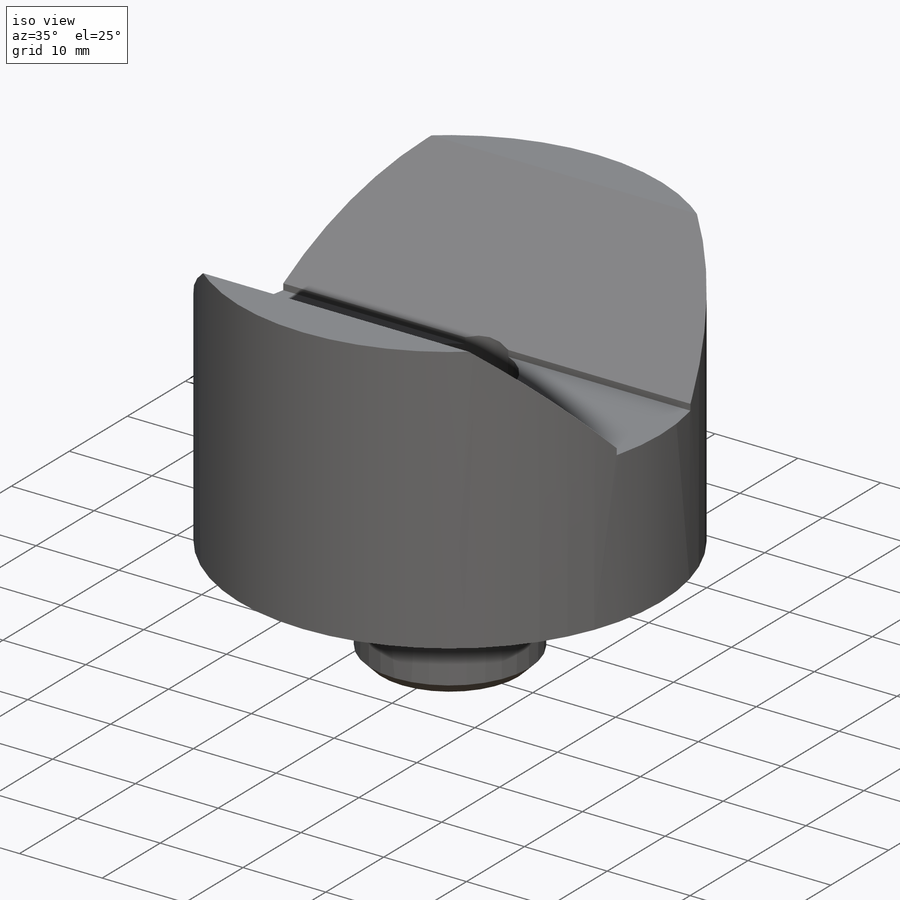
[diagram: iso view]
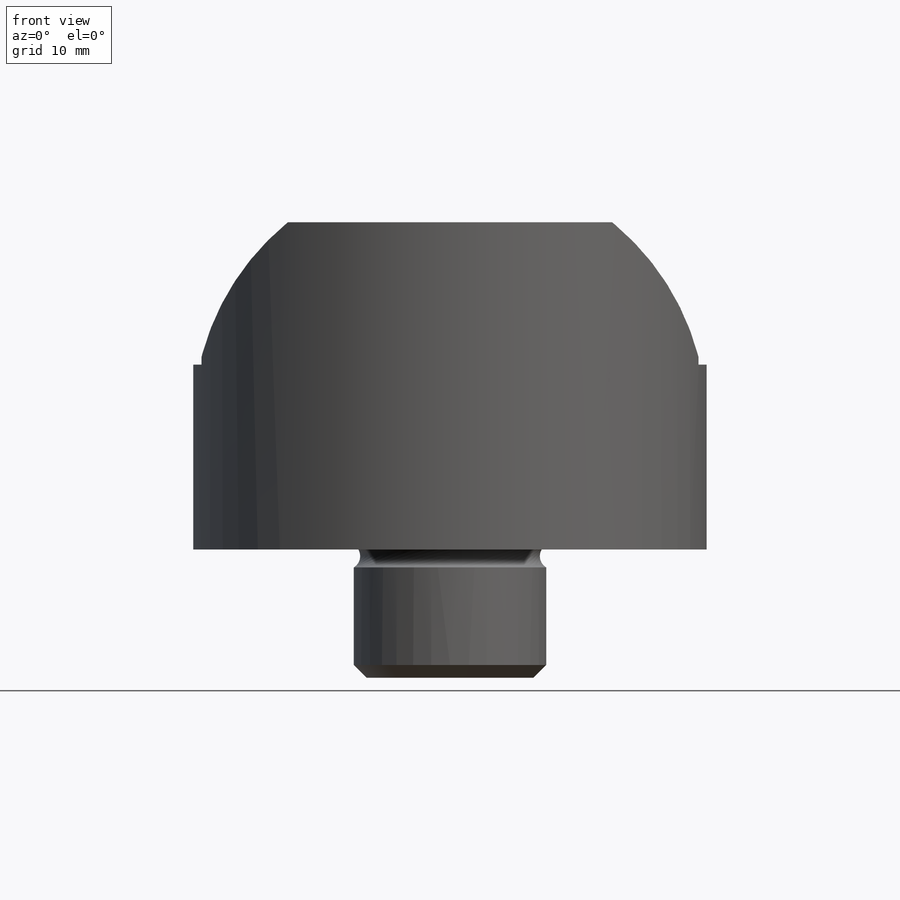
[diagram: front view]
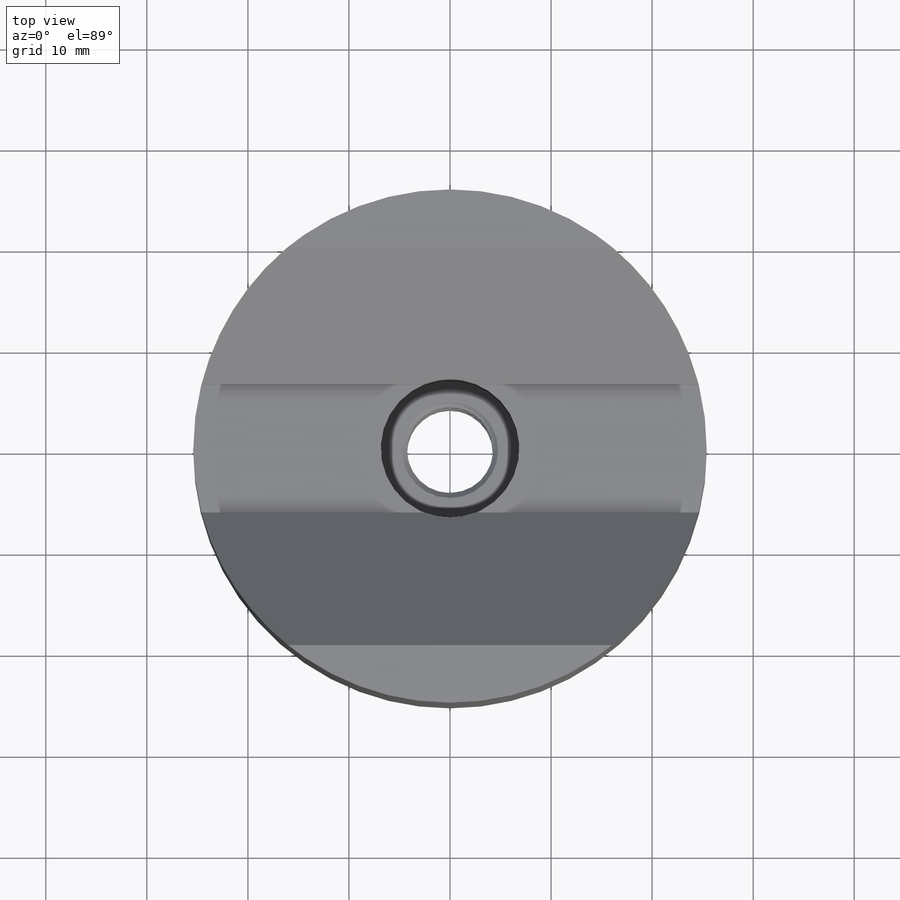
[diagram: top view]
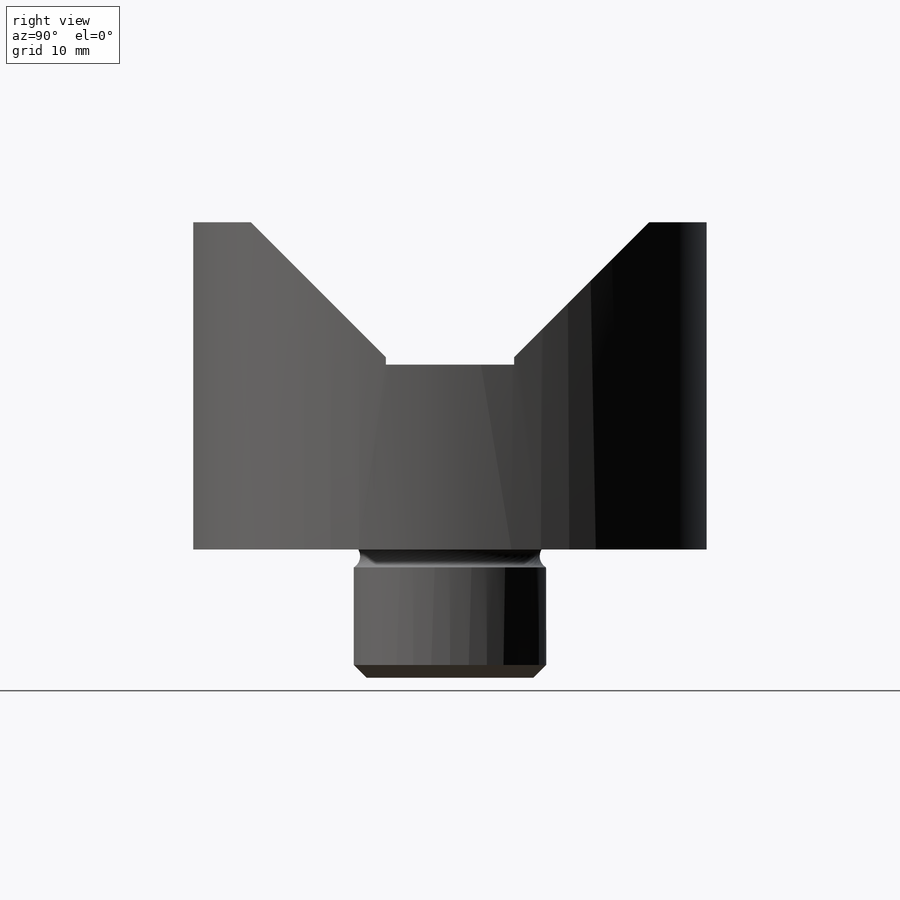
[diagram: right view]
SOLIDWORKS PART (.sldprt)
format: sldprt  version: not decoded by parser v0  size: 1,031,680 bytes
history: native  units: mm
features: sketch x5, plane x3, extrude x2, cut_extrude x2, material x1, cut_revolve x1, thread x1, chamfer x1 + 3 further entries (+10 scaffold rows collapsed)
feature tree (29):
  scaffold x10  (default folders/planes/origin — collapsed)
  material  "Material <not specified>"
  plane  "Plane X-Y"
  plane  "Plane X-Z"
  plane  "Plane Y-Z"
  "Design Table"
  "Axis - Y"
  "Axis - Z"
  sketch  "Sketch1"  dims[E=28.575mm]
  extrude  "Extrude1"  Depth=15.24mm A=15.24mm
  sketch  "Sketch3"  dims[D1=24.13mm B=7.9375mm D=9.525mm]
  cut_extrude  "Cut-Extrude1"  [1 undecoded]
  sketch  "Sketch6"  dims[F=12.7mm]
  extrude  "Extrude2"  Depth=6.35mm C=6.35mm
  sketch  "Sketch7"  dims[G=9.525mm TAP_DIA=5.1054mm H=4.826mm]
  cut_revolve  "Cut-Revolve1"  [1 undecoded]
  thread  "Cosmetic Thread1"  Diameter=6.35mm THREAD-MAJOR-DIA=6.35mm  [1 undecoded]
  chamfer  "Chamfer1"  Distance=0.6223mm Angle=45deg
  sketch  "Sketch8"
  cut_extrude  "Cut-Extrude2"  Depth=0.127mm
decode coverage: 9 of 12 modeling features carry decoded parameters; 3 rows unclassified (native names shown)
note: 3 parameter values undecoded
note: suppression state not decoded; provenance and decode notes live in map.json
